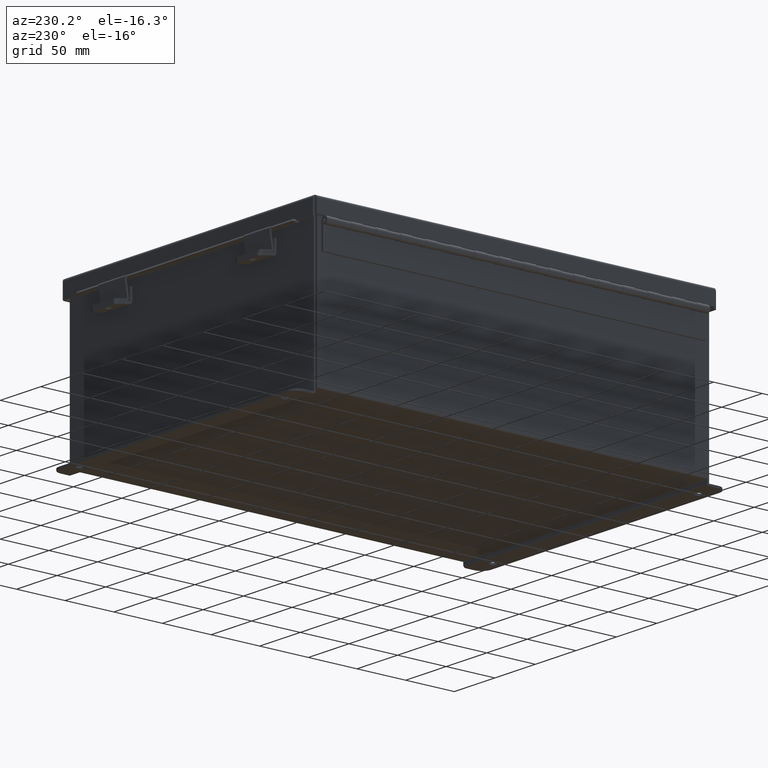
[diagram: clean part render]
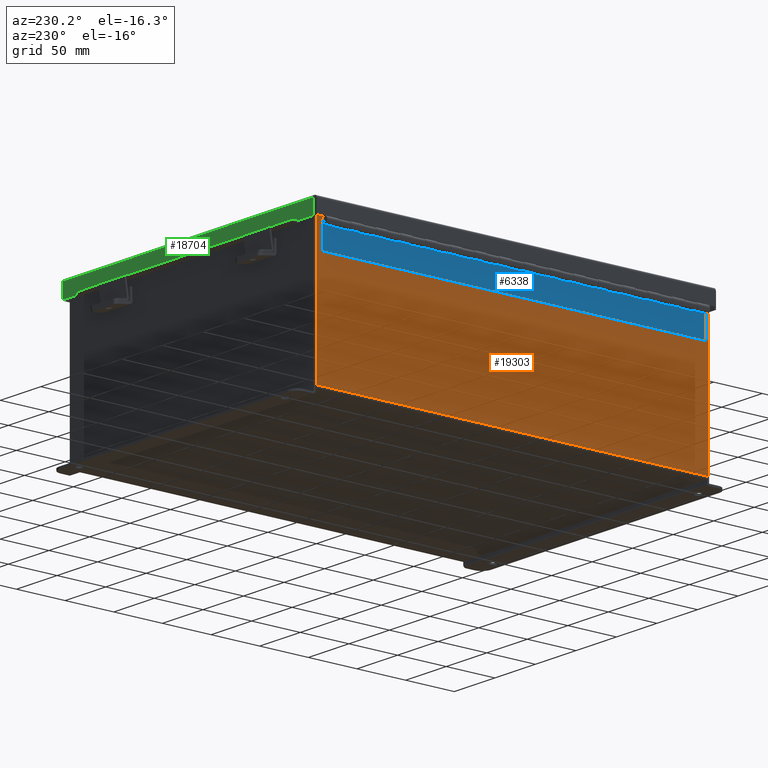
[diagram: same view with three faces highlighted in distinct colors, each labeled with its STEP entity id]
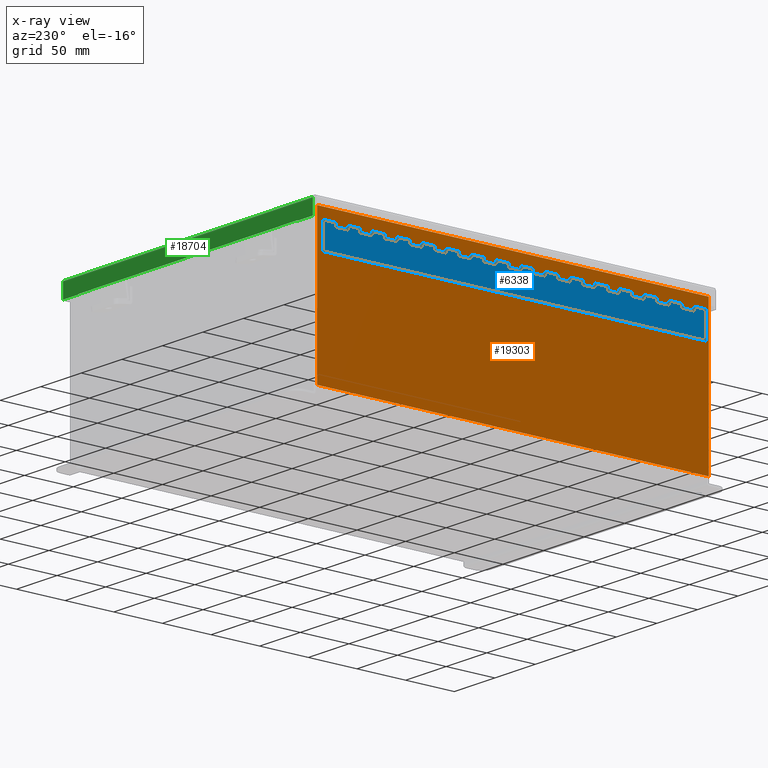
[diagram: x-ray of the same camera — body ghosted, the three highlighted faces saturated]
A machine part, auxiliary view with three faces highlighted in distinct colors.
The next image is the same camera in x-ray (body ghosted, the three faces saturated) — at least one of them is partly hidden behind the body in this view.
Their STEP definitions:

[orange] entity #19303 — the highlighted planar face has unit normal (1, 0, 0).
#940 = VERTEX_POINT ( 'NONE', #7562 ) ;
#1020 = LINE ( 'NONE', #14854, #18045 ) ;
#1043 = LINE ( 'NONE', #16932, #17079 ) ;
#1826 = ORIENTED_EDGE ( 'NONE', *, *, #14246, .F. ) ;
#2023 = DIRECTION ( 'NONE',  ( 0.0000000000000000000, 1.000000000000000000, 0.0000000000000000000 ) ) ;
#2163 = PLANE ( 'NONE',  #18066 ) ;
#2495 = FACE_OUTER_BOUND ( 'NONE', #7605, .T. ) ;
#5283 = DIRECTION ( 'NONE',  ( 1.000000000000000000, 0.0000000000000000000, 3.548703509357741800E-015 ) ) ;
#7179 = LINE ( 'NONE', #13381, #10804 ) ;
#7562 = CARTESIAN_POINT ( 'NONE',  ( -6.000000000000021300, -7.925299999999995600, 5.837600000000000100 ) ) ;
#7605 = EDGE_LOOP ( 'NONE', ( #10298, #12172, #1826, #7689 ) ) ;
#7689 = ORIENTED_EDGE ( 'NONE', *, *, #12445, .T. ) ;
#8112 = LINE ( 'NONE', #12872, #20041 ) ;
#8769 = DIRECTION ( 'NONE',  ( -3.548703509357741800E-015, 1.867738689135653700E-016, 1.000000000000000000 ) ) ;
#10298 = ORIENTED_EDGE ( 'NONE', *, *, #13521, .T. ) ;
#10660 = CARTESIAN_POINT ( 'NONE',  ( -6.000000000000000900, 7.925299999999998200, 0.01299999999999984300 ) ) ;
#10804 = VECTOR ( 'NONE', #8769, 39.37007874015748100 ) ;
#11700 = DIRECTION ( 'NONE',  ( 3.548703509357741800E-015, 0.0000000000000000000, -1.000000000000000000 ) ) ;
#12172 = ORIENTED_EDGE ( 'NONE', *, *, #19417, .T. ) ;
#12445 = EDGE_CURVE ( 'NONE', #15955, #940, #7179, .T. ) ;
#12872 = CARTESIAN_POINT ( 'NONE',  ( -6.000000000000021300, -7.925299999999996500, 5.837600000000000100 ) ) ;
#13381 = CARTESIAN_POINT ( 'NONE',  ( -6.000000000000000900, -7.925300000000000000, -2.007054572845213300E-014 ) ) ;
#13521 = EDGE_CURVE ( 'NONE', #940, #18886, #8112, .T. ) ;
#13622 = CARTESIAN_POINT ( 'NONE',  ( -6.000000000000021300, 7.925299999999996500, 5.837600000000000100 ) ) ;
#14246 = EDGE_CURVE ( 'NONE', #15955, #18037, #1043, .T. ) ;
#14591 = CARTESIAN_POINT ( 'NONE',  ( -6.000000000000000900, 0.0000000000000000000, -2.155598807500707700E-014 ) ) ;
#14854 = CARTESIAN_POINT ( 'NONE',  ( -6.000000000000000900, 7.925299999999998200, -2.155598807500707700E-014 ) ) ;
#15955 = VERTEX_POINT ( 'NONE', #18252 ) ;
#16152 = DIRECTION ( 'NONE',  ( 3.548703509357741800E-015, 0.0000000000000000000, -1.000000000000000000 ) ) ;
#16932 = CARTESIAN_POINT ( 'NONE',  ( -6.000000000000000900, 7.925299999999998200, 0.01299999999999984300 ) ) ;
#17079 = VECTOR ( 'NONE', #18507, 39.37007874015748100 ) ;
#18037 = VERTEX_POINT ( 'NONE', #10660 ) ;
#18045 = VECTOR ( 'NONE', #11700, 39.37007874015748100 ) ;
#18066 = AXIS2_PLACEMENT_3D ( 'NONE', #14591, #5283, #16152 ) ;
#18252 = CARTESIAN_POINT ( 'NONE',  ( -6.000000000000000900, -7.925300000000000000, 0.01299999999999984300 ) ) ;
#18507 = DIRECTION ( 'NONE',  ( -0.0000000000000000000, 1.000000000000000000, -0.0000000000000000000 ) ) ;
#18886 = VERTEX_POINT ( 'NONE', #13622 ) ;
#19303 = ADVANCED_FACE ( 'NONE', ( #2495 ), #2163, .F. ) ;
#19417 = EDGE_CURVE ( 'NONE', #18886, #18037, #1020, .T. ) ;
#20041 = VECTOR ( 'NONE', #2023, 39.37007874015748100 ) ;

[blue] entity #6338 — the highlighted planar face has unit normal (1, -0, 0).
#41 = VECTOR ( 'NONE', #3376, 39.37007874015748100 ) ;
#48 = EDGE_CURVE ( 'NONE', #13758, #12693, #8544, .T. ) ;
#60 = LINE ( 'NONE', #10692, #19764 ) ;
#181 = LINE ( 'NONE', #7358, #19900 ) ;
#194 = AXIS2_PLACEMENT_3D ( 'NONE', #923, #10068, #10116 ) ;
#203 = CARTESIAN_POINT ( 'NONE',  ( 0.0000000000000000000, 2.000000000000000400, 0.0000000000000000000 ) ) ;
#216 = EDGE_CURVE ( 'NONE', #10058, #9244, #2190, .T. ) ;
#312 = CARTESIAN_POINT ( 'NONE',  ( 0.2730000000000000200, -14.00000000000000000, 0.0000000000000000000 ) ) ;
#326 = CARTESIAN_POINT ( 'NONE',  ( -1.160785228077123600E-013, 7.500000000000001800, 0.0000000000000000000 ) ) ;
#432 = EDGE_CURVE ( 'NONE', #4200, #12415, #19454, .T. ) ;
#443 = ORIENTED_EDGE ( 'NONE', *, *, #16050, .F. ) ;
#500 = DIRECTION ( 'NONE',  ( -1.000000000000000000, -8.005415366049128100E-015, 0.0000000000000000000 ) ) ;
#634 = DIRECTION ( 'NONE',  ( -1.000000000000000000, 0.0000000000000000000, 0.0000000000000000000 ) ) ;
#644 = VERTEX_POINT ( 'NONE', #10613 ) ;
#692 = LINE ( 'NONE', #11695, #16727 ) ;
#706 = CARTESIAN_POINT ( 'NONE',  ( 0.0000000000000000000, 13.00000000000000000, 0.0000000000000000000 ) ) ;
#727 = DIRECTION ( 'NONE',  ( 0.0000000000000000000, 1.000000000000000000, 0.0000000000000000000 ) ) ;
#753 = CARTESIAN_POINT ( 'NONE',  ( 0.1365000000000000100, 0.0000000000000000000, -1.707404996040164500E-017 ) ) ;
#768 = LINE ( 'NONE', #6523, #9006 ) ;
#801 = VECTOR ( 'NONE', #12652, 39.37007874015748100 ) ;
#814 = DIRECTION ( 'NONE',  ( 0.0000000000000000000, 1.000000000000000000, 0.0000000000000000000 ) ) ;
#894 = VERTEX_POINT ( 'NONE', #6348 ) ;
#902 = CARTESIAN_POINT ( 'NONE',  ( 0.2730000000000000200, 10.50000000000000200, 0.0000000000000000000 ) ) ;
#923 = CARTESIAN_POINT ( 'NONE',  ( 1.136499999999999800, 15.50000000000000000, 0.0000000000000000000 ) ) ;
#929 = VECTOR ( 'NONE', #17840, 39.37007874015748100 ) ;
#975 = DIRECTION ( 'NONE',  ( -1.000000000000000000, -8.005415366049128100E-015, 0.0000000000000000000 ) ) ;
#992 = CARTESIAN_POINT ( 'NONE',  ( 0.1365000000000000100, 0.0000000000000000000, -1.707404996040164500E-017 ) ) ;
#1003 = CARTESIAN_POINT ( 'NONE',  ( 0.1365000000000000100, 14.00000000000000200, -1.707404996040164500E-017 ) ) ;
#1024 = EDGE_CURVE ( 'NONE', #15160, #6673, #2887, .T. ) ;
#1096 = ORIENTED_EDGE ( 'NONE', *, *, #8881, .T. ) ;
#1141 = EDGE_CURVE ( 'NONE', #6141, #6774, #16488, .T. ) ;
#1170 = VERTEX_POINT ( 'NONE', #5621 ) ;
#1280 = CARTESIAN_POINT ( 'NONE',  ( 0.1365000000000000100, 0.0000000000000000000, -1.707404996040164500E-017 ) ) ;
#1310 = EDGE_CURVE ( 'NONE', #11776, #5715, #5788, .T. ) ;
#1328 = ORIENTED_EDGE ( 'NONE', *, *, #216, .F. ) ;
#1346 = DIRECTION ( 'NONE',  ( 0.0000000000000000000, 1.000000000000000000, 0.0000000000000000000 ) ) ;
#1356 = VERTEX_POINT ( 'NONE', #8873 ) ;
#1358 = VERTEX_POINT ( 'NONE', #5601 ) ;
#1370 = EDGE_CURVE ( 'NONE', #17381, #2532, #692, .T. ) ;
#1427 = LINE ( 'NONE', #4857, #5076 ) ;
#1436 = EDGE_CURVE ( 'NONE', #19978, #12215, #181, .T. ) ;
#1444 = ORIENTED_EDGE ( 'NONE', *, *, #17553, .F. ) ;
#1457 = VECTOR ( 'NONE', #8918, 39.37007874015748100 ) ;
#1486 = LINE ( 'NONE', #8542, #9243 ) ;
#1488 = CARTESIAN_POINT ( 'NONE',  ( 0.2730000000000000200, 5.500000000000002700, 0.0000000000000000000 ) ) ;
#1541 = VERTEX_POINT ( 'NONE', #3161 ) ;
#1579 = VERTEX_POINT ( 'NONE', #11884 ) ;
#1615 = EDGE_CURVE ( 'NONE', #1541, #14521, #10150, .T. ) ;
#1633 = VERTEX_POINT ( 'NONE', #4172 ) ;
#1636 = ORIENTED_EDGE ( 'NONE', *, *, #3345, .F. ) ;
#1757 = LINE ( 'NONE', #18893, #801 ) ;
#1816 = CARTESIAN_POINT ( 'NONE',  ( 0.2730000000000000200, 7.000000000000000900, 0.0000000000000000000 ) ) ;
#1857 = VECTOR ( 'NONE', #14183, 39.37007874015748100 ) ;
#1873 = CARTESIAN_POINT ( 'NONE',  ( 0.1365000000000000100, 0.0000000000000000000, -1.707404996040164500E-017 ) ) ;
#1904 = CARTESIAN_POINT ( 'NONE',  ( -1.160785228077123600E-013, 3.500000000000001300, 0.0000000000000000000 ) ) ;
#2006 = CARTESIAN_POINT ( 'NONE',  ( 0.2730000000000000200, 7.500000000000003600, 0.0000000000000000000 ) ) ;
#2053 = CARTESIAN_POINT ( 'NONE',  ( 0.0000000000000000000, 11.00000000000000000, 0.0000000000000000000 ) ) ;
#2078 = VERTEX_POINT ( 'NONE', #16428 ) ;
#2131 = ORIENTED_EDGE ( 'NONE', *, *, #2773, .F. ) ;
#2184 = EDGE_CURVE ( 'NONE', #12220, #7682, #12787, .T. ) ;
#2190 = LINE ( 'NONE', #16356, #14062 ) ;
#2197 = EDGE_CURVE ( 'NONE', #5715, #7819, #20109, .T. ) ;
#2215 = CARTESIAN_POINT ( 'NONE',  ( 0.0000000000000000000, 3.000000000000001800, 0.0000000000000000000 ) ) ;
#2268 = ORIENTED_EDGE ( 'NONE', *, *, #1310, .F. ) ;
#2275 = LINE ( 'NONE', #2276, #5912 ) ;
#2276 = CARTESIAN_POINT ( 'NONE',  ( 0.2730000000000000200, -1.000000000000000000, 0.0000000000000000000 ) ) ;
#2282 = ORIENTED_EDGE ( 'NONE', *, *, #6109, .F. ) ;
#2360 = ORIENTED_EDGE ( 'NONE', *, *, #1436, .F. ) ;
#2362 = VECTOR ( 'NONE', #9621, 39.37007874015748100 ) ;
#2400 = VECTOR ( 'NONE', #8210, 39.37007874015748100 ) ;
#2440 = DIRECTION ( 'NONE',  ( -1.000000000000000000, 0.0000000000000000000, 0.0000000000000000000 ) ) ;
#2498 = LINE ( 'NONE', #16241, #9772 ) ;
#2532 = VERTEX_POINT ( 'NONE', #13254 ) ;
#2553 = LINE ( 'NONE', #5502, #9834 ) ;
#2703 = LINE ( 'NONE', #4265, #10434 ) ;
#2736 = DIRECTION ( 'NONE',  ( 0.0000000000000000000, 1.000000000000000000, 0.0000000000000000000 ) ) ;
#2773 = EDGE_CURVE ( 'NONE', #4200, #1633, #17631, .T. ) ;
#2775 = ORIENTED_EDGE ( 'NONE', *, *, #10326, .T. ) ;
#2786 = ORIENTED_EDGE ( 'NONE', *, *, #11633, .F. ) ;
#2861 = DIRECTION ( 'NONE',  ( 0.0000000000000000000, 1.000000000000000000, 0.0000000000000000000 ) ) ;
#2880 = CARTESIAN_POINT ( 'NONE',  ( 0.0000000000000000000, 4.000000000000000900, 0.0000000000000000000 ) ) ;
#2887 = LINE ( 'NONE', #14862, #2400 ) ;
#2898 = LINE ( 'NONE', #11462, #10178 ) ;
#2923 = DIRECTION ( 'NONE',  ( -1.000000000000000000, -8.005415366049128100E-015, 0.0000000000000000000 ) ) ;
#2956 = LINE ( 'NONE', #11285, #15845 ) ;
#3000 = ORIENTED_EDGE ( 'NONE', *, *, #8764, .F. ) ;
#3020 = DIRECTION ( 'NONE',  ( 0.0000000000000000000, 1.000000000000000000, 0.0000000000000000000 ) ) ;
#3158 = LINE ( 'NONE', #14306, #10910 ) ;
#3161 = CARTESIAN_POINT ( 'NONE',  ( 0.1365000000000000100, 9.000000000000001800, -1.707404996040164500E-017 ) ) ;
#3190 = DIRECTION ( 'NONE',  ( 0.0000000000000000000, 1.000000000000000000, 0.0000000000000000000 ) ) ;
#3251 = VERTEX_POINT ( 'NONE', #15458 ) ;
#3287 = CARTESIAN_POINT ( 'NONE',  ( -1.160785228077123600E-013, 5.500000000000000900, 0.0000000000000000000 ) ) ;
#3325 = VERTEX_POINT ( 'NONE', #4699 ) ;
#3337 = CARTESIAN_POINT ( 'NONE',  ( 0.0000000000000000000, 10.00000000000000000, 0.0000000000000000000 ) ) ;
#3345 = EDGE_CURVE ( 'NONE', #6870, #14171, #4227, .T. ) ;
#3364 = LINE ( 'NONE', #4987, #7492 ) ;
#3373 = CARTESIAN_POINT ( 'NONE',  ( 0.2730000000000000200, 0.0000000000000000000, 0.0000000000000000000 ) ) ;
#3376 = DIRECTION ( 'NONE',  ( -1.000000000000000000, -8.005415366049128100E-015, 0.0000000000000000000 ) ) ;
#3386 = FACE_OUTER_BOUND ( 'NONE', #14252, .T. ) ;
#3409 = EDGE_CURVE ( 'NONE', #19012, #17475, #15177, .T. ) ;
#3420 = VERTEX_POINT ( 'NONE', #3478 ) ;
#3422 = DIRECTION ( 'NONE',  ( 0.0000000000000000000, 1.000000000000000000, 0.0000000000000000000 ) ) ;
#3450 = VECTOR ( 'NONE', #2923, 39.37007874015748100 ) ;
#3478 = CARTESIAN_POINT ( 'NONE',  ( 0.2730000000000000200, 6.000000000000000900, 0.0000000000000000000 ) ) ;
#3522 = CARTESIAN_POINT ( 'NONE',  ( 0.2730000000000000200, -5.000000000000000000, 0.0000000000000000000 ) ) ;
#3526 = DIRECTION ( 'NONE',  ( 0.0000000000000000000, 1.000000000000000000, 0.0000000000000000000 ) ) ;
#3569 = LINE ( 'NONE', #10257, #15485 ) ;
#3621 = LINE ( 'NONE', #13285, #7270 ) ;
#3627 = EDGE_CURVE ( 'NONE', #9631, #1356, #4457, .T. ) ;
#3660 = CARTESIAN_POINT ( 'NONE',  ( 0.2730000000000000200, 3.000000000000001800, 0.0000000000000000000 ) ) ;
#3706 = CARTESIAN_POINT ( 'NONE',  ( 0.1365000000000000100, 6.000000000000000900, -1.707404996040164500E-017 ) ) ;
#3793 = EDGE_CURVE ( 'NONE', #2078, #6673, #2498, .T. ) ;
#3810 = DIRECTION ( 'NONE',  ( -1.000000000000000000, 0.0000000000000000000, 0.0000000000000000000 ) ) ;
#3870 = LINE ( 'NONE', #1904, #15295 ) ;
#3936 = LINE ( 'NONE', #15276, #3450 ) ;
#4040 = VECTOR ( 'NONE', #14804, 39.37007874015748100 ) ;
#4172 = CARTESIAN_POINT ( 'NONE',  ( 0.2730000000000000200, 8.000000000000001800, 0.0000000000000000000 ) ) ;
#4177 = EDGE_CURVE ( 'NONE', #3420, #15678, #2956, .T. ) ;
#4184 = ORIENTED_EDGE ( 'NONE', *, *, #18510, .F. ) ;
#4200 = VERTEX_POINT ( 'NONE', #2006 ) ;
#4227 = LINE ( 'NONE', #13052, #12472 ) ;
#4228 = CARTESIAN_POINT ( 'NONE',  ( 0.2730000000000000200, 12.50000000000000400, 0.0000000000000000000 ) ) ;
#4237 = ORIENTED_EDGE ( 'NONE', *, *, #6662, .F. ) ;
#4265 = CARTESIAN_POINT ( 'NONE',  ( -1.160785228077123600E-013, 12.50000000000000000, 0.0000000000000000000 ) ) ;
#4378 = DIRECTION ( 'NONE',  ( -1.000000000000000000, 0.0000000000000000000, 0.0000000000000000000 ) ) ;
#4387 = VECTOR ( 'NONE', #3020, 39.37007874015748100 ) ;
#4396 = VECTOR ( 'NONE', #12708, 39.37007874015748100 ) ;
#4417 = LINE ( 'NONE', #1280, #12165 ) ;
#4430 = EDGE_CURVE ( 'NONE', #12946, #17475, #14614, .T. ) ;
#4457 = LINE ( 'NONE', #17937, #12210 ) ;
#4537 = CARTESIAN_POINT ( 'NONE',  ( -1.160785228077123600E-013, 9.500000000000000000, 0.0000000000000000000 ) ) ;
#4576 = VECTOR ( 'NONE', #975, 39.37007874015748100 ) ;
#4645 = CARTESIAN_POINT ( 'NONE',  ( 0.2730000000000000200, 1.500000000000003100, 0.0000000000000000000 ) ) ;
#4699 = CARTESIAN_POINT ( 'NONE',  ( 0.2730000000000000200, 14.50000000000000400, 0.0000000000000000000 ) ) ;
#4857 = CARTESIAN_POINT ( 'NONE',  ( 0.0000000000000000000, 7.000000000000000900, 0.0000000000000000000 ) ) ;
#4885 = CARTESIAN_POINT ( 'NONE',  ( 0.2730000000000000200, 13.00000000000000000, 0.0000000000000000000 ) ) ;
#4945 = DIRECTION ( 'NONE',  ( -1.000000000000000000, 0.0000000000000000000, 0.0000000000000000000 ) ) ;
#4987 = CARTESIAN_POINT ( 'NONE',  ( 0.0000000000000000000, 15.00000000000000000, 0.0000000000000000000 ) ) ;
#5076 = VECTOR ( 'NONE', #14144, 39.37007874015748100 ) ;
#5132 = CARTESIAN_POINT ( 'NONE',  ( 0.1365000000000000100, 4.000000000000000900, -1.707404996040164500E-017 ) ) ;
#5138 = DIRECTION ( 'NONE',  ( 0.0000000000000000000, 1.000000000000000000, 0.0000000000000000000 ) ) ;
#5216 = VECTOR ( 'NONE', #19680, 39.37007874015748100 ) ;
#5332 = VECTOR ( 'NONE', #3526, 39.37007874015748100 ) ;
#5347 = VECTOR ( 'NONE', #3810, 39.37007874015748100 ) ;
#5411 = LINE ( 'NONE', #2215, #9523 ) ;
#5442 = DIRECTION ( 'NONE',  ( 0.0000000000000000000, 1.000000000000000000, 0.0000000000000000000 ) ) ;
#5502 = CARTESIAN_POINT ( 'NONE',  ( 0.1365000000000000100, 0.0000000000000000000, -1.707404996040164500E-017 ) ) ;
#5584 = CARTESIAN_POINT ( 'NONE',  ( -1.160785228077123600E-013, 10.50000000000000200, 0.0000000000000000000 ) ) ;
#5601 = CARTESIAN_POINT ( 'NONE',  ( 0.2730000000000000200, 15.00000000000000000, 0.0000000000000000000 ) ) ;
#5613 = EDGE_CURVE ( 'NONE', #11776, #12215, #3870, .T. ) ;
#5619 = ORIENTED_EDGE ( 'NONE', *, *, #5613, .T. ) ;
#5621 = CARTESIAN_POINT ( 'NONE',  ( 0.1365000000000000100, 14.50000000000000400, -1.707404996040164500E-017 ) ) ;
#5683 = ORIENTED_EDGE ( 'NONE', *, *, #1024, .F. ) ;
#5686 = ORIENTED_EDGE ( 'NONE', *, *, #15039, .T. ) ;
#5687 = CARTESIAN_POINT ( 'NONE',  ( 0.0000000000000000000, 0.0000000000000000000, 0.0000000000000000000 ) ) ;
#5715 = VERTEX_POINT ( 'NONE', #12747 ) ;
#5766 = DIRECTION ( 'NONE',  ( -1.000000000000000000, -8.005415366049128100E-015, 0.0000000000000000000 ) ) ;
#5785 = CARTESIAN_POINT ( 'NONE',  ( 0.1365000000000000100, 0.0000000000000000000, -1.707404996040164500E-017 ) ) ;
#5788 = LINE ( 'NONE', #19963, #17696 ) ;
#5804 = ORIENTED_EDGE ( 'NONE', *, *, #3627, .F. ) ;
#5845 = VECTOR ( 'NONE', #8567, 39.37007874015748100 ) ;
#5902 = ORIENTED_EDGE ( 'NONE', *, *, #7277, .F. ) ;
#5905 = ORIENTED_EDGE ( 'NONE', *, *, #10462, .F. ) ;
#5912 = VECTOR ( 'NONE', #727, 39.37007874015748100 ) ;
#5932 = CARTESIAN_POINT ( 'NONE',  ( 0.2730000000000000200, 12.00000000000000200, 0.0000000000000000000 ) ) ;
#5999 = LINE ( 'NONE', #203, #1857 ) ;
#6005 = VECTOR ( 'NONE', #17433, 39.37007874015748100 ) ;
#6019 = VECTOR ( 'NONE', #4945, 39.37007874015748100 ) ;
#6036 = CARTESIAN_POINT ( 'NONE',  ( -1.160785228077123600E-013, 0.5000000000000017800, 0.0000000000000000000 ) ) ;
#6062 = ORIENTED_EDGE ( 'NONE', *, *, #9397, .F. ) ;
#6109 = EDGE_CURVE ( 'NONE', #1358, #894, #3364, .T. ) ;
#6139 = VERTEX_POINT ( 'NONE', #11432 ) ;
#6141 = VERTEX_POINT ( 'NONE', #4645 ) ;
#6338 = ADVANCED_FACE ( 'NONE', ( #3386 ), #8716, .F. ) ;
#6348 = CARTESIAN_POINT ( 'NONE',  ( 0.1365000000000000100, 15.00000000000000000, -1.707404996040164500E-017 ) ) ;
#6479 = LINE ( 'NONE', #3373, #6005 ) ;
#6489 = DIRECTION ( 'NONE',  ( -1.000000000000000000, -8.005415366049128100E-015, 0.0000000000000000000 ) ) ;
#6523 = CARTESIAN_POINT ( 'NONE',  ( 0.0000000000000000000, 15.50000000000000000, 0.0000000000000000000 ) ) ;
#6531 = CARTESIAN_POINT ( 'NONE',  ( 0.1365000000000000100, 9.500000000000003600, -1.707404996040164500E-017 ) ) ;
#6563 = DIRECTION ( 'NONE',  ( -1.000000000000000000, 0.0000000000000000000, 0.0000000000000000000 ) ) ;
#6572 = CARTESIAN_POINT ( 'NONE',  ( 0.0000000000000000000, 5.000000000000000000, 0.0000000000000000000 ) ) ;
#6615 = ORIENTED_EDGE ( 'NONE', *, *, #2197, .F. ) ;
#6662 = EDGE_CURVE ( 'NONE', #15678, #17315, #3621, .T. ) ;
#6673 = VERTEX_POINT ( 'NONE', #14860 ) ;
#6725 = DIRECTION ( 'NONE',  ( -1.000000000000000000, 0.0000000000000000000, 0.0000000000000000000 ) ) ;
#6767 = EDGE_CURVE ( 'NONE', #7851, #11571, #9445, .T. ) ;
#6768 = LINE ( 'NONE', #5785, #14549 ) ;
#6774 = VERTEX_POINT ( 'NONE', #16097 ) ;
#6861 = VECTOR ( 'NONE', #6563, 39.37007874015748100 ) ;
#6870 = VERTEX_POINT ( 'NONE', #16391 ) ;
#6915 = VECTOR ( 'NONE', #500, 39.37007874015748100 ) ;
#7021 = CARTESIAN_POINT ( 'NONE',  ( 0.1365000000000000100, 0.0000000000000000000, -1.707404996040164500E-017 ) ) ;
#7064 = VERTEX_POINT ( 'NONE', #11624 ) ;
#7072 = DIRECTION ( 'NONE',  ( -1.000000000000000000, 0.0000000000000000000, 0.0000000000000000000 ) ) ;
#7208 = EDGE_CURVE ( 'NONE', #7682, #14634, #768, .T. ) ;
#7221 = DIRECTION ( 'NONE',  ( -1.000000000000000000, -8.005415366049128100E-015, 0.0000000000000000000 ) ) ;
#7245 = CARTESIAN_POINT ( 'NONE',  ( 0.1365000000000000100, 12.00000000000000200, -1.707404996040164500E-017 ) ) ;
#7247 = CARTESIAN_POINT ( 'NONE',  ( 1.136500000000000100, 0.0000000000000000000, 0.0000000000000000000 ) ) ;
#7270 = VECTOR ( 'NONE', #3190, 39.37007874015748100 ) ;
#7277 = EDGE_CURVE ( 'NONE', #6141, #15873, #16310, .T. ) ;
#7332 = VECTOR ( 'NONE', #17128, 39.37007874015748100 ) ;
#7357 = CARTESIAN_POINT ( 'NONE',  ( 0.2730000000000000200, -4.000000000000000000, 0.0000000000000000000 ) ) ;
#7358 = CARTESIAN_POINT ( 'NONE',  ( 0.1365000000000000100, 0.0000000000000000000, -1.707404996040164500E-017 ) ) ;
#7384 = EDGE_CURVE ( 'NONE', #19579, #7064, #1486, .T. ) ;
#7407 = ORIENTED_EDGE ( 'NONE', *, *, #3409, .T. ) ;
#7429 = VERTEX_POINT ( 'NONE', #18271 ) ;
#7492 = VECTOR ( 'NONE', #2440, 39.37007874015748100 ) ;
#7526 = EDGE_CURVE ( 'NONE', #9674, #2532, #2703, .T. ) ;
#7580 = LINE ( 'NONE', #4537, #19043 ) ;
#7622 = ORIENTED_EDGE ( 'NONE', *, *, #18159, .F. ) ;
#7641 = VERTEX_POINT ( 'NONE', #17821 ) ;
#7682 = VERTEX_POINT ( 'NONE', #8445 ) ;
#7723 = LINE ( 'NONE', #14450, #15989 ) ;
#7786 = ORIENTED_EDGE ( 'NONE', *, *, #6767, .F. ) ;
#7792 = CARTESIAN_POINT ( 'NONE',  ( 0.2730000000000000200, -13.00000000000000000, 0.0000000000000000000 ) ) ;
#7819 = VERTEX_POINT ( 'NONE', #5132 ) ;
#7851 = VERTEX_POINT ( 'NONE', #18586 ) ;
#7869 = ORIENTED_EDGE ( 'NONE', *, *, #13901, .F. ) ;
#7993 = EDGE_CURVE ( 'NONE', #17386, #1170, #3158, .T. ) ;
#8055 = VECTOR ( 'NONE', #18695, 39.37007874015748100 ) ;
#8137 = ORIENTED_EDGE ( 'NONE', *, *, #16850, .F. ) ;
#8175 = VERTEX_POINT ( 'NONE', #17920 ) ;
#8210 = DIRECTION ( 'NONE',  ( 0.0000000000000000000, 1.000000000000000000, 0.0000000000000000000 ) ) ;
#8215 = CARTESIAN_POINT ( 'NONE',  ( 0.1365000000000000100, 13.50000000000000400, -1.707404996040164500E-017 ) ) ;
#8280 = CARTESIAN_POINT ( 'NONE',  ( 0.0000000000000000000, 12.00000000000000200, 0.0000000000000000000 ) ) ;
#8342 = EDGE_CURVE ( 'NONE', #18768, #12759, #17990, .T. ) ;
#8445 = CARTESIAN_POINT ( 'NONE',  ( 1.136500000000000100, 15.50000000000000000, 0.0000000000000000000 ) ) ;
#8538 = DIRECTION ( 'NONE',  ( 0.0000000000000000000, 1.000000000000000000, 0.0000000000000000000 ) ) ;
#8542 = CARTESIAN_POINT ( 'NONE',  ( 0.2730000000000000200, -10.00000000000000000, 0.0000000000000000000 ) ) ;
#8544 = LINE ( 'NONE', #6036, #8055 ) ;
#8567 = DIRECTION ( 'NONE',  ( 0.0000000000000000000, 1.000000000000000000, 0.0000000000000000000 ) ) ;
#8716 = PLANE ( 'NONE',  #194 ) ;
#8717 = LINE ( 'NONE', #5584, #4576 ) ;
#8764 = EDGE_CURVE ( 'NONE', #1633, #9631, #2898, .T. ) ;
#8798 = LINE ( 'NONE', #12657, #41 ) ;
#8873 = CARTESIAN_POINT ( 'NONE',  ( 0.1365000000000000100, 8.500000000000003600, -1.707404996040164500E-017 ) ) ;
#8881 = EDGE_CURVE ( 'NONE', #18768, #12233, #8717, .T. ) ;
#8918 = DIRECTION ( 'NONE',  ( 0.0000000000000000000, 1.000000000000000000, 0.0000000000000000000 ) ) ;
#8921 = VECTOR ( 'NONE', #19859, 39.37007874015748100 ) ;
#8976 = CARTESIAN_POINT ( 'NONE',  ( 0.2730000000000000200, 9.000000000000001800, 0.0000000000000000000 ) ) ;
#8999 = EDGE_CURVE ( 'NONE', #15199, #12415, #6768, .T. ) ;
#9006 = VECTOR ( 'NONE', #18343, 39.37007874015748100 ) ;
#9015 = LINE ( 'NONE', #1873, #4396 ) ;
#9076 = VECTOR ( 'NONE', #14116, 39.37007874015748100 ) ;
#9243 = VECTOR ( 'NONE', #11958, 39.37007874015748100 ) ;
#9244 = VERTEX_POINT ( 'NONE', #8215 ) ;
#9397 = EDGE_CURVE ( 'NONE', #19012, #3420, #7723, .T. ) ;
#9410 = ORIENTED_EDGE ( 'NONE', *, *, #432, .T. ) ;
#9444 = LINE ( 'NONE', #5687, #17226 ) ;
#9445 = LINE ( 'NONE', #14671, #5332 ) ;
#9458 = LINE ( 'NONE', #706, #5347 ) ;
#9523 = VECTOR ( 'NONE', #13059, 39.37007874015748100 ) ;
#9527 = ORIENTED_EDGE ( 'NONE', *, *, #16455, .F. ) ;
#9621 = DIRECTION ( 'NONE',  ( 0.0000000000000000000, 1.000000000000000000, 0.0000000000000000000 ) ) ;
#9631 = VERTEX_POINT ( 'NONE', #11886 ) ;
#9674 = VERTEX_POINT ( 'NONE', #4228 ) ;
#9772 = VECTOR ( 'NONE', #16343, 39.37007874015748100 ) ;
#9834 = VECTOR ( 'NONE', #8538, 39.37007874015748100 ) ;
#9837 = ORIENTED_EDGE ( 'NONE', *, *, #3793, .T. ) ;
#9912 = LINE ( 'NONE', #13706, #8921 ) ;
#9944 = DIRECTION ( 'NONE',  ( -1.000000000000000000, 0.0000000000000000000, 0.0000000000000000000 ) ) ;
#10045 = VECTOR ( 'NONE', #12896, 39.37007874015748100 ) ;
#10058 = VERTEX_POINT ( 'NONE', #12985 ) ;
#10068 = DIRECTION ( 'NONE',  ( 0.0000000000000000000, 0.0000000000000000000, -1.000000000000000000 ) ) ;
#10116 = DIRECTION ( 'NONE',  ( -1.000000000000000000, 0.0000000000000000000, -0.0000000000000000000 ) ) ;
#10124 = CARTESIAN_POINT ( 'NONE',  ( 0.2730000000000000200, -11.99999999999999800, 0.0000000000000000000 ) ) ;
#10150 = LINE ( 'NONE', #992, #929 ) ;
#10178 = VECTOR ( 'NONE', #634, 39.37007874015748100 ) ;
#10198 = CARTESIAN_POINT ( 'NONE',  ( 0.1365000000000000100, 7.500000000000003600, -1.707404996040164500E-017 ) ) ;
#10257 = CARTESIAN_POINT ( 'NONE',  ( -1.160785228077123600E-013, 4.500000000000000900, 0.0000000000000000000 ) ) ;
#10326 = EDGE_CURVE ( 'NONE', #8175, #1579, #9912, .T. ) ;
#10343 = ORIENTED_EDGE ( 'NONE', *, *, #18994, .F. ) ;
#10359 = CARTESIAN_POINT ( 'NONE',  ( 0.2730000000000000200, 13.50000000000000400, 0.0000000000000000000 ) ) ;
#10434 = VECTOR ( 'NONE', #15904, 39.37007874015748100 ) ;
#10462 = EDGE_CURVE ( 'NONE', #7064, #12946, #18423, .T. ) ;
#10492 = DIRECTION ( 'NONE',  ( 0.0000000000000000000, 1.000000000000000000, 0.0000000000000000000 ) ) ;
#10504 = EDGE_CURVE ( 'NONE', #19579, #7429, #3569, .T. ) ;
#10506 = ORIENTED_EDGE ( 'NONE', *, *, #4430, .F. ) ;
#10507 = ORIENTED_EDGE ( 'NONE', *, *, #7526, .T. ) ;
#10533 = CARTESIAN_POINT ( 'NONE',  ( 0.1365000000000000100, 5.500000000000002700, -1.707404996040164500E-017 ) ) ;
#10577 = DIRECTION ( 'NONE',  ( -1.000000000000000000, -8.005415366049128100E-015, 0.0000000000000000000 ) ) ;
#10586 = LINE ( 'NONE', #312, #2362 ) ;
#10603 = DIRECTION ( 'NONE',  ( -1.000000000000000000, 0.0000000000000000000, 0.0000000000000000000 ) ) ;
#10613 = CARTESIAN_POINT ( 'NONE',  ( 0.2730000000000000200, 8.500000000000003600, 0.0000000000000000000 ) ) ;
#10692 = CARTESIAN_POINT ( 'NONE',  ( 0.2730000000000000200, -2.999999999999999600, 0.0000000000000000000 ) ) ;
#10694 = DIRECTION ( 'NONE',  ( -1.000000000000000000, -8.005415366049128100E-015, 0.0000000000000000000 ) ) ;
#10778 = VECTOR ( 'NONE', #6725, 39.37007874015748100 ) ;
#10848 = CARTESIAN_POINT ( 'NONE',  ( 0.2730000000000000200, 11.00000000000000000, 0.0000000000000000000 ) ) ;
#10863 = EDGE_CURVE ( 'NONE', #15873, #7641, #5999, .T. ) ;
#10910 = VECTOR ( 'NONE', #3422, 39.37007874015748100 ) ;
#10933 = VECTOR ( 'NONE', #13095, 39.37007874015748100 ) ;
#10957 = CARTESIAN_POINT ( 'NONE',  ( 0.1365000000000000100, 7.000000000000000900, -1.707404996040164500E-017 ) ) ;
#11059 = DIRECTION ( 'NONE',  ( -1.000000000000000000, 0.0000000000000000000, 0.0000000000000000000 ) ) ;
#11110 = VERTEX_POINT ( 'NONE', #16249 ) ;
#11263 = LINE ( 'NONE', #8280, #10778 ) ;
#11285 = CARTESIAN_POINT ( 'NONE',  ( 0.0000000000000000000, 6.000000000000000900, 0.0000000000000000000 ) ) ;
#11318 = ORIENTED_EDGE ( 'NONE', *, *, #19196, .F. ) ;
#11333 = ORIENTED_EDGE ( 'NONE', *, *, #13000, .F. ) ;
#11432 = CARTESIAN_POINT ( 'NONE',  ( 0.2730000000000000200, 9.500000000000003600, 0.0000000000000000000 ) ) ;
#11443 = LINE ( 'NONE', #12398, #7332 ) ;
#11462 = CARTESIAN_POINT ( 'NONE',  ( 0.0000000000000000000, 8.000000000000001800, 0.0000000000000000000 ) ) ;
#11571 = VERTEX_POINT ( 'NONE', #1816 ) ;
#11623 = EDGE_CURVE ( 'NONE', #13758, #6870, #10586, .T. ) ;
#11624 = CARTESIAN_POINT ( 'NONE',  ( 0.2730000000000000200, 5.000000000000000000, 0.0000000000000000000 ) ) ;
#11633 = EDGE_CURVE ( 'NONE', #3325, #1358, #6479, .T. ) ;
#11674 = VECTOR ( 'NONE', #10492, 39.37007874015748100 ) ;
#11695 = CARTESIAN_POINT ( 'NONE',  ( 0.1365000000000000100, 0.0000000000000000000, -1.707404996040164500E-017 ) ) ;
#11733 = ORIENTED_EDGE ( 'NONE', *, *, #13039, .F. ) ;
#11748 = ORIENTED_EDGE ( 'NONE', *, *, #4177, .F. ) ;
#11757 = LINE ( 'NONE', #3522, #16406 ) ;
#11776 = VERTEX_POINT ( 'NONE', #13199 ) ;
#11884 = CARTESIAN_POINT ( 'NONE',  ( 0.1365000000000000100, 2.500000000000004400, -1.707404996040164500E-017 ) ) ;
#11886 = CARTESIAN_POINT ( 'NONE',  ( 0.1365000000000000100, 8.000000000000001800, -1.707404996040164500E-017 ) ) ;
#11958 = DIRECTION ( 'NONE',  ( 0.0000000000000000000, 1.000000000000000000, 0.0000000000000000000 ) ) ;
#11997 = ORIENTED_EDGE ( 'NONE', *, *, #7993, .F. ) ;
#12133 = ORIENTED_EDGE ( 'NONE', *, *, #13091, .F. ) ;
#12135 = LINE ( 'NONE', #12297, #4387 ) ;
#12165 = VECTOR ( 'NONE', #2861, 39.37007874015748100 ) ;
#12210 = VECTOR ( 'NONE', #814, 39.37007874015748100 ) ;
#12215 = VERTEX_POINT ( 'NONE', #12908 ) ;
#12220 = VERTEX_POINT ( 'NONE', #17607 ) ;
#12233 = VERTEX_POINT ( 'NONE', #16056 ) ;
#12247 = DIRECTION ( 'NONE',  ( 0.0000000000000000000, 1.000000000000000000, 0.0000000000000000000 ) ) ;
#12297 = CARTESIAN_POINT ( 'NONE',  ( 0.2730000000000000200, -5.999999999999999100, 0.0000000000000000000 ) ) ;
#12319 = VECTOR ( 'NONE', #6489, 39.37007874015748100 ) ;
#12398 = CARTESIAN_POINT ( 'NONE',  ( -1.160785228077123600E-013, 6.500000000000000900, 0.0000000000000000000 ) ) ;
#12415 = VERTEX_POINT ( 'NONE', #10198 ) ;
#12450 = CARTESIAN_POINT ( 'NONE',  ( 0.1365000000000000100, 11.00000000000000000, -1.707404996040164500E-017 ) ) ;
#12472 = VECTOR ( 'NONE', #9944, 39.37007874015748100 ) ;
#12652 = DIRECTION ( 'NONE',  ( 0.0000000000000000000, 1.000000000000000000, 0.0000000000000000000 ) ) ;
#12657 = CARTESIAN_POINT ( 'NONE',  ( -1.160785228077123600E-013, 13.50000000000000200, 0.0000000000000000000 ) ) ;
#12693 = VERTEX_POINT ( 'NONE', #20126 ) ;
#12708 = DIRECTION ( 'NONE',  ( 0.0000000000000000000, 1.000000000000000000, 0.0000000000000000000 ) ) ;
#12747 = CARTESIAN_POINT ( 'NONE',  ( 0.2730000000000000200, 4.000000000000000900, 0.0000000000000000000 ) ) ;
#12759 = VERTEX_POINT ( 'NONE', #10848 ) ;
#12769 = ORIENTED_EDGE ( 'NONE', *, *, #14743, .F. ) ;
#12787 = LINE ( 'NONE', #7247, #4040 ) ;
#12896 = DIRECTION ( 'NONE',  ( -1.000000000000000000, 0.0000000000000000000, 0.0000000000000000000 ) ) ;
#12908 = CARTESIAN_POINT ( 'NONE',  ( 0.1365000000000000100, 3.500000000000003600, -1.707404996040164500E-017 ) ) ;
#12944 = LINE ( 'NONE', #16305, #16600 ) ;
#12946 = VERTEX_POINT ( 'NONE', #14328 ) ;
#12985 = CARTESIAN_POINT ( 'NONE',  ( 0.1365000000000000100, 13.00000000000000000, -1.707404996040164500E-017 ) ) ;
#13000 = EDGE_CURVE ( 'NONE', #6139, #19429, #11757, .T. ) ;
#13039 = EDGE_CURVE ( 'NONE', #14172, #17381, #11263, .T. ) ;
#13052 = CARTESIAN_POINT ( 'NONE',  ( 0.0000000000000000000, 1.000000000000001300, 0.0000000000000000000 ) ) ;
#13059 = DIRECTION ( 'NONE',  ( -1.000000000000000000, 0.0000000000000000000, 0.0000000000000000000 ) ) ;
#13091 = EDGE_CURVE ( 'NONE', #3251, #12233, #2553, .T. ) ;
#13095 = DIRECTION ( 'NONE',  ( 0.0000000000000000000, 1.000000000000000000, 0.0000000000000000000 ) ) ;
#13199 = CARTESIAN_POINT ( 'NONE',  ( 0.2730000000000000200, 3.500000000000003600, 0.0000000000000000000 ) ) ;
#13217 = VERTEX_POINT ( 'NONE', #10359 ) ;
#13229 = VERTEX_POINT ( 'NONE', #19708 ) ;
#13254 = CARTESIAN_POINT ( 'NONE',  ( 0.1365000000000000100, 12.50000000000000400, -1.707404996040164500E-017 ) ) ;
#13285 = CARTESIAN_POINT ( 'NONE',  ( 0.1365000000000000100, 0.0000000000000000000, -1.707404996040164500E-017 ) ) ;
#13391 = CARTESIAN_POINT ( 'NONE',  ( -1.160785228077123600E-013, 8.500000000000001800, 0.0000000000000000000 ) ) ;
#13633 = DIRECTION ( 'NONE',  ( 0.0000000000000000000, 1.000000000000000000, 0.0000000000000000000 ) ) ;
#13706 = CARTESIAN_POINT ( 'NONE',  ( -1.160785228077123600E-013, 2.500000000000002200, 0.0000000000000000000 ) ) ;
#13758 = VERTEX_POINT ( 'NONE', #15939 ) ;
#13901 = EDGE_CURVE ( 'NONE', #13217, #13229, #2275, .T. ) ;
#13937 = ORIENTED_EDGE ( 'NONE', *, *, #18594, .F. ) ;
#14062 = VECTOR ( 'NONE', #1346, 39.37007874015748100 ) ;
#14112 = LINE ( 'NONE', #19956, #14625 ) ;
#14116 = DIRECTION ( 'NONE',  ( 0.0000000000000000000, 1.000000000000000000, 0.0000000000000000000 ) ) ;
#14144 = DIRECTION ( 'NONE',  ( -1.000000000000000000, 0.0000000000000000000, 0.0000000000000000000 ) ) ;
#14171 = VERTEX_POINT ( 'NONE', #15237 ) ;
#14172 = VERTEX_POINT ( 'NONE', #5932 ) ;
#14183 = DIRECTION ( 'NONE',  ( -1.000000000000000000, 0.0000000000000000000, 0.0000000000000000000 ) ) ;
#14252 = EDGE_LOOP ( 'NONE', ( #19045, #15141, #16116, #15647, #17070, #7622, #2282, #2786, #5686, #11997, #17302, #7869, #14500, #1328, #8137, #11318, #10507, #15196, #11733, #10343, #9837, #5683, #13937, #18056, #1096, #12133, #4184, #11333, #19275, #16549, #16103, #443, #15934, #5804, #3000, #2131, #9410, #14902, #1444, #7786, #15255, #4237, #11748, #6062, #7407, #10506, #5905, #16394, #19924, #16690, #6615, #2268, #5619, #2360, #16442, #17567, #2775, #12769, #15969, #5902, #14472, #9527, #1636, #19304 ) ) ;
#14306 = CARTESIAN_POINT ( 'NONE',  ( 0.1365000000000000100, 0.0000000000000000000, -1.707404996040164500E-017 ) ) ;
#14328 = CARTESIAN_POINT ( 'NONE',  ( 0.1365000000000000100, 5.000000000000000000, -1.707404996040164500E-017 ) ) ;
#14450 = CARTESIAN_POINT ( 'NONE',  ( 0.2730000000000000200, -9.000000000000000000, 0.0000000000000000000 ) ) ;
#14472 = ORIENTED_EDGE ( 'NONE', *, *, #1141, .T. ) ;
#14481 = VERTEX_POINT ( 'NONE', #4885 ) ;
#14485 = CARTESIAN_POINT ( 'NONE',  ( 0.1365000000000000100, 15.50000000000000000, -1.707404996040164500E-017 ) ) ;
#14500 = ORIENTED_EDGE ( 'NONE', *, *, #15294, .T. ) ;
#14521 = VERTEX_POINT ( 'NONE', #6531 ) ;
#14549 = VECTOR ( 'NONE', #13633, 39.37007874015748100 ) ;
#14599 = LINE ( 'NONE', #7021, #5845 ) ;
#14614 = LINE ( 'NONE', #753, #10933 ) ;
#14625 = VECTOR ( 'NONE', #10603, 39.37007874015748100 ) ;
#14634 = VERTEX_POINT ( 'NONE', #14485 ) ;
#14658 = VERTEX_POINT ( 'NONE', #3660 ) ;
#14669 = LINE ( 'NONE', #2053, #10045 ) ;
#14671 = CARTESIAN_POINT ( 'NONE',  ( 0.2730000000000000200, -8.000000000000000000, 0.0000000000000000000 ) ) ;
#14743 = EDGE_CURVE ( 'NONE', #7641, #1579, #12944, .T. ) ;
#14798 = EDGE_CURVE ( 'NONE', #8175, #14658, #19769, .T. ) ;
#14804 = DIRECTION ( 'NONE',  ( -8.812412882787946000E-018, 1.000000000000000000, 0.0000000000000000000 ) ) ;
#14860 = CARTESIAN_POINT ( 'NONE',  ( 0.1365000000000000100, 11.50000000000000400, -1.707404996040164500E-017 ) ) ;
#14862 = CARTESIAN_POINT ( 'NONE',  ( 0.1365000000000000100, 0.0000000000000000000, -1.707404996040164500E-017 ) ) ;
#14902 = ORIENTED_EDGE ( 'NONE', *, *, #8999, .F. ) ;
#15009 = EDGE_CURVE ( 'NONE', #11110, #12693, #4417, .T. ) ;
#15039 = EDGE_CURVE ( 'NONE', #3325, #1170, #3936, .T. ) ;
#15048 = CARTESIAN_POINT ( 'NONE',  ( -1.160785228077123600E-013, 1.500000000000000900, 0.0000000000000000000 ) ) ;
#15077 = EDGE_CURVE ( 'NONE', #6139, #14521, #7580, .T. ) ;
#15141 = ORIENTED_EDGE ( 'NONE', *, *, #15009, .F. ) ;
#15160 = VERTEX_POINT ( 'NONE', #12450 ) ;
#15177 = LINE ( 'NONE', #3287, #6915 ) ;
#15196 = ORIENTED_EDGE ( 'NONE', *, *, #1370, .F. ) ;
#15199 = VERTEX_POINT ( 'NONE', #10957 ) ;
#15237 = CARTESIAN_POINT ( 'NONE',  ( 0.1365000000000000100, 1.000000000000001300, -1.707404996040164500E-017 ) ) ;
#15255 = ORIENTED_EDGE ( 'NONE', *, *, #20138, .T. ) ;
#15276 = CARTESIAN_POINT ( 'NONE',  ( -1.160785228077123600E-013, 14.50000000000000200, 0.0000000000000000000 ) ) ;
#15293 = VECTOR ( 'NONE', #5766, 39.37007874015748100 ) ;
#15294 = EDGE_CURVE ( 'NONE', #13217, #9244, #8798, .T. ) ;
#15295 = VECTOR ( 'NONE', #10577, 39.37007874015748100 ) ;
#15313 = DIRECTION ( 'NONE',  ( 0.0000000000000000000, 1.000000000000000000, 0.0000000000000000000 ) ) ;
#15330 = EDGE_CURVE ( 'NONE', #17993, #1541, #19282, .T. ) ;
#15392 = DIRECTION ( 'NONE',  ( 0.0000000000000000000, 1.000000000000000000, 0.0000000000000000000 ) ) ;
#15458 = CARTESIAN_POINT ( 'NONE',  ( 0.1365000000000000100, 10.00000000000000000, -1.707404996040164500E-017 ) ) ;
#15485 = VECTOR ( 'NONE', #7221, 39.37007874015748100 ) ;
#15647 = ORIENTED_EDGE ( 'NONE', *, *, #2184, .T. ) ;
#15678 = VERTEX_POINT ( 'NONE', #3706 ) ;
#15845 = VECTOR ( 'NONE', #4378, 39.37007874015748100 ) ;
#15873 = VERTEX_POINT ( 'NONE', #19695 ) ;
#15904 = DIRECTION ( 'NONE',  ( -1.000000000000000000, -8.005415366049128100E-015, 0.0000000000000000000 ) ) ;
#15934 = ORIENTED_EDGE ( 'NONE', *, *, #17886, .T. ) ;
#15939 = CARTESIAN_POINT ( 'NONE',  ( 0.2730000000000000200, 0.5000000000000040000, 0.0000000000000000000 ) ) ;
#15969 = ORIENTED_EDGE ( 'NONE', *, *, #10863, .F. ) ;
#15973 = VECTOR ( 'NONE', #7072, 39.37007874015748100 ) ;
#15989 = VECTOR ( 'NONE', #5138, 39.37007874015748100 ) ;
#16050 = EDGE_CURVE ( 'NONE', #644, #17993, #12135, .T. ) ;
#16056 = CARTESIAN_POINT ( 'NONE',  ( 0.1365000000000000100, 10.50000000000000200, -1.707404996040164500E-017 ) ) ;
#16097 = CARTESIAN_POINT ( 'NONE',  ( 0.1365000000000000100, 1.500000000000003100, -1.707404996040164500E-017 ) ) ;
#16103 = ORIENTED_EDGE ( 'NONE', *, *, #15330, .F. ) ;
#16116 = ORIENTED_EDGE ( 'NONE', *, *, #17357, .T. ) ;
#16135 = LINE ( 'NONE', #3337, #19785 ) ;
#16241 = CARTESIAN_POINT ( 'NONE',  ( -1.160785228077123600E-013, 11.50000000000000200, 0.0000000000000000000 ) ) ;
#16249 = CARTESIAN_POINT ( 'NONE',  ( 0.1364999999999999000, 0.0000000000000000000, 0.0000000000000000000 ) ) ;
#16305 = CARTESIAN_POINT ( 'NONE',  ( 0.1365000000000000100, 0.0000000000000000000, -1.707404996040164500E-017 ) ) ;
#16310 = LINE ( 'NONE', #7792, #11674 ) ;
#16343 = DIRECTION ( 'NONE',  ( -1.000000000000000000, -8.005415366049128100E-015, 0.0000000000000000000 ) ) ;
#16356 = CARTESIAN_POINT ( 'NONE',  ( 0.1365000000000000100, 0.0000000000000000000, -1.707404996040164500E-017 ) ) ;
#16391 = CARTESIAN_POINT ( 'NONE',  ( 0.2730000000000000200, 1.000000000000001300, 0.0000000000000000000 ) ) ;
#16394 = ORIENTED_EDGE ( 'NONE', *, *, #7384, .F. ) ;
#16406 = VECTOR ( 'NONE', #17519, 39.37007874015748100 ) ;
#16428 = CARTESIAN_POINT ( 'NONE',  ( 0.2730000000000000200, 11.50000000000000400, 0.0000000000000000000 ) ) ;
#16442 = ORIENTED_EDGE ( 'NONE', *, *, #19853, .F. ) ;
#16455 = EDGE_CURVE ( 'NONE', #14171, #6774, #14599, .T. ) ;
#16488 = LINE ( 'NONE', #15048, #12319 ) ;
#16549 = ORIENTED_EDGE ( 'NONE', *, *, #1615, .F. ) ;
#16555 = DIRECTION ( 'NONE',  ( 1.000000000000000000, 0.0000000000000000000, 0.0000000000000000000 ) ) ;
#16592 = CARTESIAN_POINT ( 'NONE',  ( 0.1365000000000000100, 3.000000000000001800, -1.707404996040164500E-017 ) ) ;
#16600 = VECTOR ( 'NONE', #5442, 39.37007874015748100 ) ;
#16690 = ORIENTED_EDGE ( 'NONE', *, *, #19716, .F. ) ;
#16727 = VECTOR ( 'NONE', #15392, 39.37007874015748100 ) ;
#16850 = EDGE_CURVE ( 'NONE', #14481, #10058, #9458, .T. ) ;
#17070 = ORIENTED_EDGE ( 'NONE', *, *, #7208, .T. ) ;
#17128 = DIRECTION ( 'NONE',  ( -1.000000000000000000, -8.005415366049128100E-015, 0.0000000000000000000 ) ) ;
#17145 = VECTOR ( 'NONE', #2736, 39.37007874015748100 ) ;
#17226 = VECTOR ( 'NONE', #16555, 39.37007874015748100 ) ;
#17302 = ORIENTED_EDGE ( 'NONE', *, *, #19599, .F. ) ;
#17315 = VERTEX_POINT ( 'NONE', #17996 ) ;
#17350 = LINE ( 'NONE', #18724, #9076 ) ;
#17357 = EDGE_CURVE ( 'NONE', #11110, #12220, #9444, .T. ) ;
#17381 = VERTEX_POINT ( 'NONE', #7245 ) ;
#17386 = VERTEX_POINT ( 'NONE', #1003 ) ;
#17433 = DIRECTION ( 'NONE',  ( 0.0000000000000000000, 1.000000000000000000, 0.0000000000000000000 ) ) ;
#17475 = VERTEX_POINT ( 'NONE', #10533 ) ;
#17519 = DIRECTION ( 'NONE',  ( 0.0000000000000000000, 1.000000000000000000, 0.0000000000000000000 ) ) ;
#17553 = EDGE_CURVE ( 'NONE', #11571, #15199, #1427, .T. ) ;
#17567 = ORIENTED_EDGE ( 'NONE', *, *, #14798, .F. ) ;
#17607 = CARTESIAN_POINT ( 'NONE',  ( 1.136500000000000100, 0.0000000000000000000, 0.0000000000000000000 ) ) ;
#17631 = LINE ( 'NONE', #17755, #17145 ) ;
#17696 = VECTOR ( 'NONE', #20013, 39.37007874015748100 ) ;
#17755 = CARTESIAN_POINT ( 'NONE',  ( 0.2730000000000000200, -7.000000000000000000, 0.0000000000000000000 ) ) ;
#17821 = CARTESIAN_POINT ( 'NONE',  ( 0.1365000000000000100, 2.000000000000000400, -1.707404996040164500E-017 ) ) ;
#17840 = DIRECTION ( 'NONE',  ( 0.0000000000000000000, 1.000000000000000000, 0.0000000000000000000 ) ) ;
#17886 = EDGE_CURVE ( 'NONE', #644, #1356, #18606, .T. ) ;
#17920 = CARTESIAN_POINT ( 'NONE',  ( 0.2730000000000000200, 2.500000000000004400, 0.0000000000000000000 ) ) ;
#17937 = CARTESIAN_POINT ( 'NONE',  ( 0.1365000000000000100, 0.0000000000000000000, -1.707404996040164500E-017 ) ) ;
#17952 = DIRECTION ( 'NONE',  ( 0.0000000000000000000, 1.000000000000000000, 0.0000000000000000000 ) ) ;
#17990 = LINE ( 'NONE', #7357, #1457 ) ;
#17992 = CARTESIAN_POINT ( 'NONE',  ( 0.2730000000000000200, 10.00000000000000000, 0.0000000000000000000 ) ) ;
#17993 = VERTEX_POINT ( 'NONE', #8976 ) ;
#17996 = CARTESIAN_POINT ( 'NONE',  ( 0.1365000000000000100, 6.500000000000003600, -1.707404996040164500E-017 ) ) ;
#18056 = ORIENTED_EDGE ( 'NONE', *, *, #8342, .F. ) ;
#18159 = EDGE_CURVE ( 'NONE', #894, #14634, #17350, .T. ) ;
#18271 = CARTESIAN_POINT ( 'NONE',  ( 0.1365000000000000100, 4.500000000000002700, -1.707404996040164500E-017 ) ) ;
#18310 = CARTESIAN_POINT ( 'NONE',  ( 0.2730000000000000200, 4.500000000000002700, 0.0000000000000000000 ) ) ;
#18343 = DIRECTION ( 'NONE',  ( -1.000000000000000000, -0.0000000000000000000, -0.0000000000000000000 ) ) ;
#18423 = LINE ( 'NONE', #6572, #6019 ) ;
#18510 = EDGE_CURVE ( 'NONE', #19429, #3251, #16135, .T. ) ;
#18586 = CARTESIAN_POINT ( 'NONE',  ( 0.2730000000000000200, 6.500000000000003600, 0.0000000000000000000 ) ) ;
#18594 = EDGE_CURVE ( 'NONE', #12759, #15160, #14669, .T. ) ;
#18606 = LINE ( 'NONE', #13391, #5216 ) ;
#18695 = DIRECTION ( 'NONE',  ( -1.000000000000000000, -8.005415366049128100E-015, 0.0000000000000000000 ) ) ;
#18724 = CARTESIAN_POINT ( 'NONE',  ( 0.1365000000000000100, 0.0000000000000000000, -1.707404996040164500E-017 ) ) ;
#18768 = VERTEX_POINT ( 'NONE', #902 ) ;
#18893 = CARTESIAN_POINT ( 'NONE',  ( 0.2730000000000000200, -2.000000000000000000, 0.0000000000000000000 ) ) ;
#18963 = CARTESIAN_POINT ( 'NONE',  ( 0.0000000000000000000, 9.000000000000001800, 0.0000000000000000000 ) ) ;
#18994 = EDGE_CURVE ( 'NONE', #2078, #14172, #60, .T. ) ;
#19012 = VERTEX_POINT ( 'NONE', #1488 ) ;
#19043 = VECTOR ( 'NONE', #10694, 39.37007874015748100 ) ;
#19045 = ORIENTED_EDGE ( 'NONE', *, *, #48, .T. ) ;
#19196 = EDGE_CURVE ( 'NONE', #9674, #14481, #1757, .T. ) ;
#19275 = ORIENTED_EDGE ( 'NONE', *, *, #15077, .T. ) ;
#19282 = LINE ( 'NONE', #18963, #6861 ) ;
#19297 = VECTOR ( 'NONE', #17952, 39.37007874015748100 ) ;
#19304 = ORIENTED_EDGE ( 'NONE', *, *, #11623, .F. ) ;
#19429 = VERTEX_POINT ( 'NONE', #17992 ) ;
#19454 = LINE ( 'NONE', #326, #15293 ) ;
#19579 = VERTEX_POINT ( 'NONE', #18310 ) ;
#19599 = EDGE_CURVE ( 'NONE', #13229, #17386, #14112, .T. ) ;
#19680 = DIRECTION ( 'NONE',  ( -1.000000000000000000, -8.005415366049128100E-015, 0.0000000000000000000 ) ) ;
#19695 = CARTESIAN_POINT ( 'NONE',  ( 0.2730000000000000200, 2.000000000000000400, 0.0000000000000000000 ) ) ;
#19708 = CARTESIAN_POINT ( 'NONE',  ( 0.2730000000000000200, 14.00000000000000200, 0.0000000000000000000 ) ) ;
#19716 = EDGE_CURVE ( 'NONE', #7819, #7429, #9015, .T. ) ;
#19764 = VECTOR ( 'NONE', #12247, 39.37007874015748100 ) ;
#19769 = LINE ( 'NONE', #10124, #19297 ) ;
#19785 = VECTOR ( 'NONE', #11059, 39.37007874015748100 ) ;
#19853 = EDGE_CURVE ( 'NONE', #14658, #19978, #5411, .T. ) ;
#19859 = DIRECTION ( 'NONE',  ( -1.000000000000000000, -8.005415366049128100E-015, 0.0000000000000000000 ) ) ;
#19900 = VECTOR ( 'NONE', #15313, 39.37007874015748100 ) ;
#19924 = ORIENTED_EDGE ( 'NONE', *, *, #10504, .T. ) ;
#19956 = CARTESIAN_POINT ( 'NONE',  ( 0.0000000000000000000, 14.00000000000000200, 0.0000000000000000000 ) ) ;
#19963 = CARTESIAN_POINT ( 'NONE',  ( 0.2730000000000000200, -11.00000000000000000, 0.0000000000000000000 ) ) ;
#19978 = VERTEX_POINT ( 'NONE', #16592 ) ;
#20013 = DIRECTION ( 'NONE',  ( 0.0000000000000000000, 1.000000000000000000, 0.0000000000000000000 ) ) ;
#20109 = LINE ( 'NONE', #2880, #15973 ) ;
#20126 = CARTESIAN_POINT ( 'NONE',  ( 0.1365000000000000100, 0.5000000000000040000, -1.707404996040164500E-017 ) ) ;
#20138 = EDGE_CURVE ( 'NONE', #7851, #17315, #11443, .T. ) ;

[green] entity #18704 — the highlighted planar face has unit normal (-0, -1, -0).
#563 = CARTESIAN_POINT ( 'NONE',  ( -6.074478932188154300, 8.156250000000001800, 0.6123000000000080600 ) ) ;
#759 = DIRECTION ( 'NONE',  ( 0.0000000000000000000, -3.569293475308532400E-015, -1.000000000000000000 ) ) ;
#1078 = ORIENTED_EDGE ( 'NONE', *, *, #3292, .F. ) ;
#1081 = VERTEX_POINT ( 'NONE', #5361 ) ;
#1202 = LINE ( 'NONE', #7401, #17227 ) ;
#1319 = CARTESIAN_POINT ( 'NONE',  ( 6.074478932188153400, 8.156250000000001800, 0.6122999999999994000 ) ) ;
#1501 = VERTEX_POINT ( 'NONE', #1319 ) ;
#1578 = VECTOR ( 'NONE', #11276, 39.37007874015748100 ) ;
#1929 = VERTEX_POINT ( 'NONE', #18971 ) ;
#2199 = VECTOR ( 'NONE', #6554, 39.37007874015748100 ) ;
#2375 = CARTESIAN_POINT ( 'NONE',  ( 6.074478932188154300, 8.156250000000000000, 0.01299999999999901400 ) ) ;
#2555 = CARTESIAN_POINT ( 'NONE',  ( -5.324478932188150700, 8.156250000000001800, 0.5967115427318858700 ) ) ;
#3010 = VECTOR ( 'NONE', #13448, 39.37007874015748100 ) ;
#3292 = EDGE_CURVE ( 'NONE', #16864, #17463, #13461, .T. ) ;
#3444 = VERTEX_POINT ( 'NONE', #563 ) ;
#3453 = DIRECTION ( 'NONE',  ( 1.000000000000000000, 3.215253892142773000E-030, 5.546899479520625800E-018 ) ) ;
#4012 = LINE ( 'NONE', #16314, #11784 ) ;
#4248 = ORIENTED_EDGE ( 'NONE', *, *, #17030, .T. ) ;
#4729 = VECTOR ( 'NONE', #15154, 39.37007874015748100 ) ;
#5326 = LINE ( 'NONE', #10464, #12578 ) ;
#5361 = CARTESIAN_POINT ( 'NONE',  ( -6.074478932188154300, 8.156250000000000000, 0.01300000000000010700 ) ) ;
#6027 = EDGE_CURVE ( 'NONE', #6448, #1501, #5326, .T. ) ;
#6448 = VERTEX_POINT ( 'NONE', #2375 ) ;
#6540 = VECTOR ( 'NONE', #12528, 39.37007874015748100 ) ;
#6554 = DIRECTION ( 'NONE',  ( 1.000000000000000000, 3.191323508412550700E-030, -0.0000000000000000000 ) ) ;
#6794 = EDGE_CURVE ( 'NONE', #3444, #1929, #1202, .T. ) ;
#6830 = EDGE_LOOP ( 'NONE', ( #1078, #4248, #12965, #9147, #8359, #16373, #19565, #6898 ) ) ;
#6898 = ORIENTED_EDGE ( 'NONE', *, *, #12369, .F. ) ;
#7401 = CARTESIAN_POINT ( 'NONE',  ( -3.201384367575308500E-018, 8.156250000000001800, 0.6123000000000005100 ) ) ;
#8024 = EDGE_CURVE ( 'NONE', #1081, #6448, #19235, .T. ) ;
#8359 = ORIENTED_EDGE ( 'NONE', *, *, #12556, .T. ) ;
#8480 = PLANE ( 'NONE',  #19904 ) ;
#8841 = CARTESIAN_POINT ( 'NONE',  ( -5.324478932188150700, 8.156250000000000000, 0.5967115427318858700 ) ) ;
#9147 = ORIENTED_EDGE ( 'NONE', *, *, #8024, .F. ) ;
#10048 = DIRECTION ( 'NONE',  ( -3.372195227344556400E-030, -1.000000000000000000, 3.569293475308532400E-015 ) ) ;
#10097 = DIRECTION ( 'NONE',  ( -0.0000000000000000000, 3.569293475308532400E-015, 1.000000000000000000 ) ) ;
#10464 = CARTESIAN_POINT ( 'NONE',  ( 6.074478932188153400, 8.156250000000000000, -1.092739197465705300E-015 ) ) ;
#11276 = DIRECTION ( 'NONE',  ( -7.009925220120406800E-014, -2.803970088048153600E-013, -1.000000000000000000 ) ) ;
#11539 = CARTESIAN_POINT ( 'NONE',  ( 5.324478932188150700, 8.156250000000001800, 0.6122999999999994000 ) ) ;
#11784 = VECTOR ( 'NONE', #17894, 39.37007874015748100 ) ;
#12369 = EDGE_CURVE ( 'NONE', #17463, #17885, #4012, .T. ) ;
#12528 = DIRECTION ( 'NONE',  ( 1.000000000000000000, 3.215253892142773000E-030, 5.546899479520625800E-018 ) ) ;
#12556 = EDGE_CURVE ( 'NONE', #1081, #3444, #17624, .T. ) ;
#12578 = VECTOR ( 'NONE', #10097, 39.37007874015748100 ) ;
#12965 = ORIENTED_EDGE ( 'NONE', *, *, #6027, .F. ) ;
#13448 = DIRECTION ( 'NONE',  ( 0.0000000000000000000, 2.102977566036071600E-013, 1.000000000000000000 ) ) ;
#13461 = LINE ( 'NONE', #17276, #1578 ) ;
#13569 = CARTESIAN_POINT ( 'NONE',  ( -6.074478932188153400, 8.156250000000000000, -2.841121913410833900E-014 ) ) ;
#14037 = CARTESIAN_POINT ( 'NONE',  ( -3.201384367575308500E-018, 8.156250000000001800, 0.6123000000000005100 ) ) ;
#14369 = CARTESIAN_POINT ( 'NONE',  ( 6.156250000000015100, 8.156250000000000000, 0.01300000000000010700 ) ) ;
#14826 = LINE ( 'NONE', #14037, #6540 ) ;
#15154 = DIRECTION ( 'NONE',  ( 0.0000000000000000000, 3.569293475308532400E-015, 1.000000000000000000 ) ) ;
#16314 = CARTESIAN_POINT ( 'NONE',  ( 5.324478932188150700, 8.156250000000000000, 0.5967115427318782100 ) ) ;
#16373 = ORIENTED_EDGE ( 'NONE', *, *, #6794, .T. ) ;
#16763 = CARTESIAN_POINT ( 'NONE',  ( 5.324478932188149800, 8.156250000000001800, 0.5967115427318782100 ) ) ;
#16864 = VERTEX_POINT ( 'NONE', #11539 ) ;
#17030 = EDGE_CURVE ( 'NONE', #16864, #1501, #14826, .T. ) ;
#17227 = VECTOR ( 'NONE', #3453, 39.37007874015748100 ) ;
#17276 = CARTESIAN_POINT ( 'NONE',  ( 5.324478932188150700, 8.156250000000003600, 0.6122999999999982900 ) ) ;
#17324 = FACE_OUTER_BOUND ( 'NONE', #6830, .T. ) ;
#17463 = VERTEX_POINT ( 'NONE', #16763 ) ;
#17624 = LINE ( 'NONE', #13569, #4729 ) ;
#17885 = VERTEX_POINT ( 'NONE', #2555 ) ;
#17894 = DIRECTION ( 'NONE',  ( -1.000000000000000000, -3.215975411700707400E-030, -0.0000000000000000000 ) ) ;
#18278 = EDGE_CURVE ( 'NONE', #17885, #1929, #19557, .T. ) ;
#18704 = ADVANCED_FACE ( 'NONE', ( #17324 ), #8480, .F. ) ;
#18971 = CARTESIAN_POINT ( 'NONE',  ( -5.324478932188149800, 8.156250000000001800, 0.6123000000000080600 ) ) ;
#19235 = LINE ( 'NONE', #14369, #2199 ) ;
#19398 = CARTESIAN_POINT ( 'NONE',  ( 0.0000000000000000000, 8.156250000000000000, -2.950395833157404200E-014 ) ) ;
#19557 = LINE ( 'NONE', #8841, #3010 ) ;
#19565 = ORIENTED_EDGE ( 'NONE', *, *, #18278, .F. ) ;
#19904 = AXIS2_PLACEMENT_3D ( 'NONE', #19398, #10048, #759 ) ;